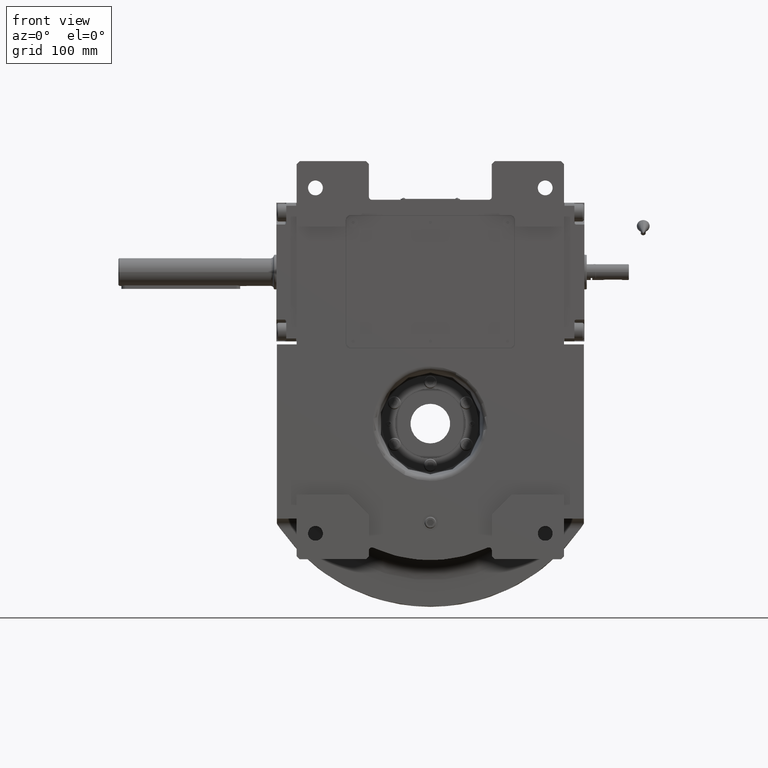
[diagram: clean part render]
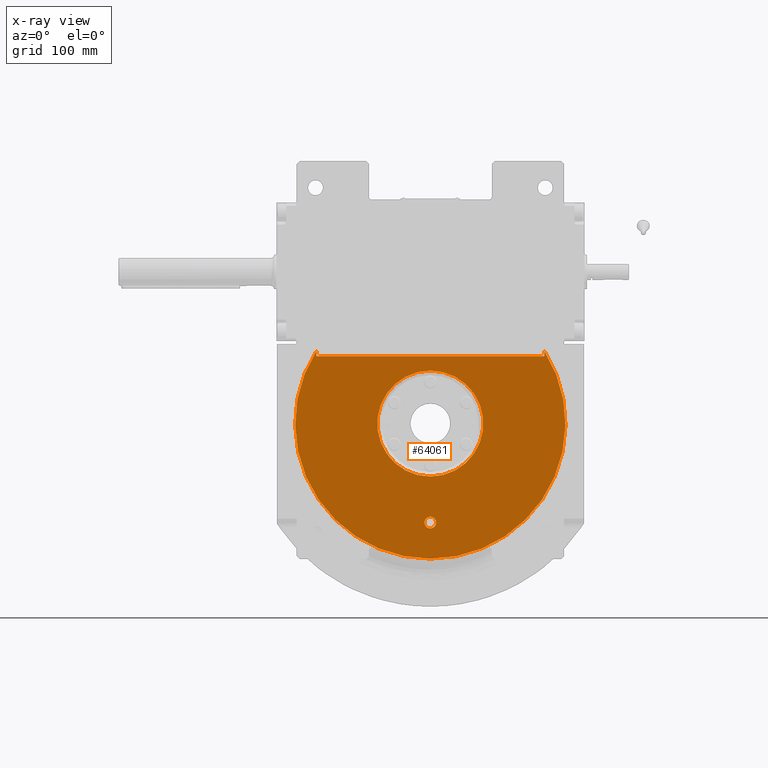
[diagram: x-ray — body ghosted, one internal face saturated and labeled with its STEP entity id]
A machine part, front view, then the same camera in x-ray: the body is ghosted and one INTERNAL B-rep face — a face not visible from any outside direction — is saturated and labeled: STEP entity #64061.
In plain terms, the highlighted planar face has unit normal (0, -1, 0).
Its self-contained STEP definition (entity closure, byte-faithful):
#1272 = FACE_BOUND ( 'NONE', #22988, .T. ) ;
#1411 = AXIS2_PLACEMENT_3D ( 'NONE', #24222, #24921, #62072 ) ;
#1647 = PLANE ( 'NONE',  #19820 ) ;
#1957 = CARTESIAN_POINT ( 'NONE',  ( -115.0000000000000000, -63.00000000000000000, 0.000000000000000000 ) ) ;
#2431 = DIRECTION ( 'NONE',  ( 0.000000000000000000, 1.000000000000000000, 0.000000000000000000 ) ) ;
#2463 = CARTESIAN_POINT ( 'NONE',  ( -115.0000000000000000, -63.00000000000000000, 73.53400573884168523 ) ) ;
#2674 = VERTEX_POINT ( 'NONE', #2463 ) ;
#2881 = ORIENTED_EDGE ( 'NONE', *, *, #69155, .T. ) ;
#2960 = VERTEX_POINT ( 'NONE', #38782 ) ;
#3101 = CIRCLE ( 'NONE', #69160, 136.5000000000000000 ) ;
#4149 = CIRCLE ( 'NONE', #12137, 53.50000000000000000 ) ;
#4784 = LINE ( 'NONE', #26520, #55049 ) ;
#8192 = CIRCLE ( 'NONE', #60607, 5.875000000000000000 ) ;
#9995 = ORIENTED_EDGE ( 'NONE', *, *, #35498, .F. ) ;
#10548 = AXIS2_PLACEMENT_3D ( 'NONE', #52006, #2431, #45610 ) ;
#10745 = ORIENTED_EDGE ( 'NONE', *, *, #64925, .T. ) ;
#11999 = EDGE_LOOP ( 'NONE', ( #32737, #25688 ) ) ;
#12137 = AXIS2_PLACEMENT_3D ( 'NONE', #38206, #47856, #32480 ) ;
#13205 = DIRECTION ( 'NONE',  ( 0.000000000000000000, 1.000000000000000000, 0.000000000000000000 ) ) ;
#13640 = CARTESIAN_POINT ( 'NONE',  ( 6.551860375438339893E-15, -63.00000000000000000, 53.50000000000000000 ) ) ;
#13995 = CARTESIAN_POINT ( 'NONE',  ( 5.875000000000000000, -63.00000000000000000, -100.0000000000000000 ) ) ;
#14142 = ORIENTED_EDGE ( 'NONE', *, *, #41152, .F. ) ;
#15256 = EDGE_CURVE ( 'NONE', #55376, #19135, #4784, .T. ) ;
#15859 = VECTOR ( 'NONE', #36576, 1000.000000000000000 ) ;
#16974 = DIRECTION ( 'NONE',  ( 0.000000000000000000, -1.000000000000000000, 1.836909530733564901E-16 ) ) ;
#17650 = CARTESIAN_POINT ( 'NONE',  ( -115.0000000000000000, -63.00000000000000000, 67.99999999999997158 ) ) ;
#18048 = EDGE_CURVE ( 'NONE', #20861, #21826, #57241, .T. ) ;
#19135 = VERTEX_POINT ( 'NONE', #19787 ) ;
#19143 = VECTOR ( 'NONE', #55815, 1000.000000000000000 ) ;
#19787 = CARTESIAN_POINT ( 'NONE',  ( 115.0000000000000000, -63.00000000000000000, 73.53400573884168523 ) ) ;
#19820 = AXIS2_PLACEMENT_3D ( 'NONE', #44817, #16974, #61570 ) ;
#20831 = CIRCLE ( 'NONE', #10548, 53.50000000000000000 ) ;
#20861 = VERTEX_POINT ( 'NONE', #22517 ) ;
#21770 = VERTEX_POINT ( 'NONE', #13640 ) ;
#21826 = VERTEX_POINT ( 'NONE', #13995 ) ;
#22517 = CARTESIAN_POINT ( 'NONE',  ( -5.875000000000000000, -63.00000000000000000, -100.0000000000000000 ) ) ;
#22988 = EDGE_LOOP ( 'NONE', ( #14142, #40978 ) ) ;
#24222 = CARTESIAN_POINT ( 'NONE',  ( 0.000000000000000000, -63.00000000000000000, -100.0000000000000000 ) ) ;
#24446 = LINE ( 'NONE', #25505, #15859 ) ;
#24921 = DIRECTION ( 'NONE',  ( 0.000000000000000000, -1.000000000000000000, 0.000000000000000000 ) ) ;
#24984 = DIRECTION ( 'NONE',  ( -1.209434443846979996E-15, -1.000000000000000000, 1.209434443846979996E-15 ) ) ;
#25505 = CARTESIAN_POINT ( 'NONE',  ( 0.000000000000000000, -62.99999999999998579, 67.99999999999997158 ) ) ;
#25688 = ORIENTED_EDGE ( 'NONE', *, *, #18048, .T. ) ;
#26520 = CARTESIAN_POINT ( 'NONE',  ( 115.0000000000000000, -63.00000000000000000, 0.000000000000000000 ) ) ;
#26719 = CARTESIAN_POINT ( 'NONE',  ( 0.000000000000000000, -63.00000000000000000, -53.50000000000000000 ) ) ;
#27117 = EDGE_CURVE ( 'NONE', #21826, #20861, #8192, .T. ) ;
#29496 = DIRECTION ( 'NONE',  ( 0.000000000000000000, 0.000000000000000000, 1.000000000000000000 ) ) ;
#32114 = EDGE_CURVE ( 'NONE', #21770, #60472, #4149, .T. ) ;
#32480 = DIRECTION ( 'NONE',  ( 0.000000000000000000, 0.000000000000000000, 1.000000000000000000 ) ) ;
#32737 = ORIENTED_EDGE ( 'NONE', *, *, #27117, .T. ) ;
#33012 = FACE_OUTER_BOUND ( 'NONE', #61150, .T. ) ;
#34597 = CARTESIAN_POINT ( 'NONE',  ( 0.000000000000000000, -63.00000000000000000, 0.000000000000000000 ) ) ;
#35498 = EDGE_CURVE ( 'NONE', #62734, #2674, #61531, .T. ) ;
#36096 = ORIENTED_EDGE ( 'NONE', *, *, #15256, .T. ) ;
#36576 = DIRECTION ( 'NONE',  ( -1.000000000000000000, 0.000000000000000000, 0.000000000000000000 ) ) ;
#38206 = CARTESIAN_POINT ( 'NONE',  ( 0.000000000000000000, -63.00000000000000000, 0.000000000000000000 ) ) ;
#38782 = CARTESIAN_POINT ( 'NONE',  ( 0.000000000000000000, -63.00000000000000000, -136.5000000000000000 ) ) ;
#39320 = AXIS2_PLACEMENT_3D ( 'NONE', #44556, #40612, #29496 ) ;
#40156 = FACE_BOUND ( 'NONE', #11999, .T. ) ;
#40612 = DIRECTION ( 'NONE',  ( 0.000000000000000000, 1.000000000000000000, 0.000000000000000000 ) ) ;
#40978 = ORIENTED_EDGE ( 'NONE', *, *, #32114, .F. ) ;
#41152 = EDGE_CURVE ( 'NONE', #60472, #21770, #20831, .T. ) ;
#44556 = CARTESIAN_POINT ( 'NONE',  ( 0.000000000000000000, -63.00000000000000000, 0.000000000000000000 ) ) ;
#44817 = CARTESIAN_POINT ( 'NONE',  ( 0.000000000000000000, -63.00000000000000000, 2.534751534906250014E-14 ) ) ;
#45610 = DIRECTION ( 'NONE',  ( 0.000000000000000000, 0.000000000000000000, 1.000000000000000000 ) ) ;
#46772 = DIRECTION ( 'NONE',  ( 1.000000000000000000, -2.362176648138630895E-15, 0.000000000000000000 ) ) ;
#47856 = DIRECTION ( 'NONE',  ( 0.000000000000000000, 1.000000000000000000, 0.000000000000000000 ) ) ;
#50899 = CARTESIAN_POINT ( 'NONE',  ( 115.0000000000000000, -63.00000000000000000, 67.99999999999997158 ) ) ;
#51068 = EDGE_CURVE ( 'NONE', #55376, #62734, #24446, .T. ) ;
#52006 = CARTESIAN_POINT ( 'NONE',  ( 0.000000000000000000, -63.00000000000000000, 0.000000000000000000 ) ) ;
#55049 = VECTOR ( 'NONE', #59729, 1000.000000000000000 ) ;
#55376 = VERTEX_POINT ( 'NONE', #50899 ) ;
#55815 = DIRECTION ( 'NONE',  ( 0.000000000000000000, 0.000000000000000000, 1.000000000000000000 ) ) ;
#56388 = DIRECTION ( 'NONE',  ( 0.000000000000000000, 0.000000000000000000, 1.000000000000000000 ) ) ;
#57241 = CIRCLE ( 'NONE', #1411, 5.875000000000000000 ) ;
#59729 = DIRECTION ( 'NONE',  ( 0.000000000000000000, 0.000000000000000000, 1.000000000000000000 ) ) ;
#59867 = ORIENTED_EDGE ( 'NONE', *, *, #51068, .F. ) ;
#60472 = VERTEX_POINT ( 'NONE', #26719 ) ;
#60607 = AXIS2_PLACEMENT_3D ( 'NONE', #64250, #24984, #46772 ) ;
#61150 = EDGE_LOOP ( 'NONE', ( #9995, #59867, #36096, #2881, #10745 ) ) ;
#61531 = LINE ( 'NONE', #1957, #19143 ) ;
#61570 = DIRECTION ( 'NONE',  ( 0.000000000000000000, 1.836909530733564901E-16, 1.000000000000000000 ) ) ;
#62072 = DIRECTION ( 'NONE',  ( -1.000000000000000000, 0.000000000000000000, 0.000000000000000000 ) ) ;
#62734 = VERTEX_POINT ( 'NONE', #17650 ) ;
#64061 = ADVANCED_FACE ( 'NONE', ( #33012, #40156, #1272 ), #1647, .F. ) ;
#64250 = CARTESIAN_POINT ( 'NONE',  ( 0.000000000000000000, -63.00000000000000000, -100.0000000000000000 ) ) ;
#64925 = EDGE_CURVE ( 'NONE', #2960, #2674, #65493, .T. ) ;
#65493 = CIRCLE ( 'NONE', #39320, 136.5000000000000000 ) ;
#69155 = EDGE_CURVE ( 'NONE', #19135, #2960, #3101, .T. ) ;
#69160 = AXIS2_PLACEMENT_3D ( 'NONE', #34597, #13205, #56388 ) ;